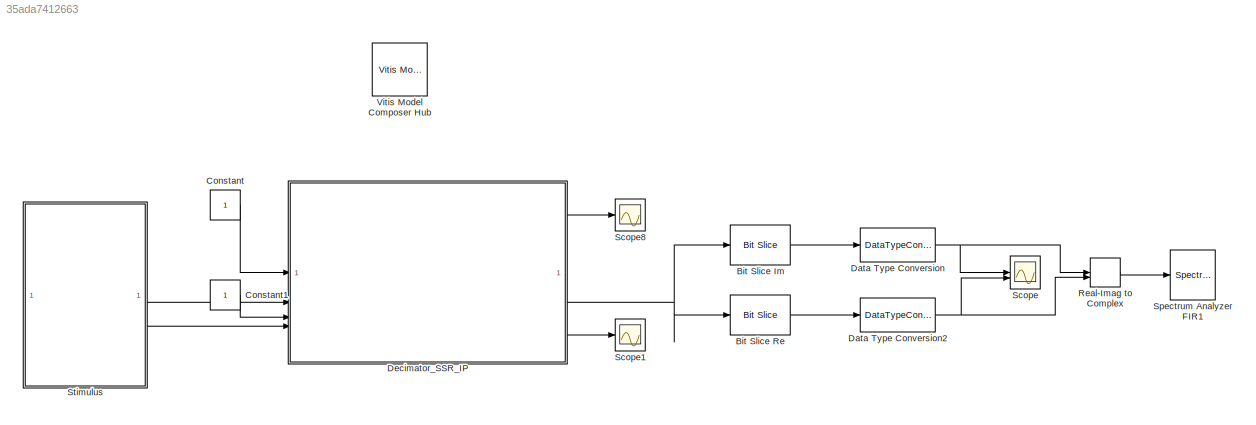
MODEL slx_35ada7412663
KIND model
CONFIG AbsTol = auto
CONFIG EnableMultiTasking = off
CONFIG FixedStep = auto
CONFIG MaxStep = auto
CONFIG MinStep = auto
CONFIG PreLoadFcn = startup
CONFIG RelTol = 1e-3
CONFIG SampleTimeConstraint = Unconstrained
CONFIG SolverName = VariableStepAuto
CONFIG StartTime = 0.0
CONFIG StopTime = 6000*(1/Fclk)
BLOCK [Reference] Bit Slice Im  REF=hdlsllib/Logic and Bit
Operations/Bit Slice
  SourceBlock = hdlsllib/Logic and Bit\nOperations/Bit Slice
  SourceType = Bit Slice
BLOCK [Reference] Bit Slice Re  REF=hdlsllib/Logic and Bit
Operations/Bit Slice
  SourceBlock = hdlsllib/Logic and Bit\nOperations/Bit Slice
  SourceType = Bit Slice
BLOCK [Constant] Constant
BLOCK [Constant] Constant1
BLOCK [DataTypeConversion] Data Type Conversion
  ConvertRealWorld = Stored Integer (SI)
  OutDataTypeStr = fixdt(1,16,15)
  RndMeth = Floor
  SaturateOnIntegerOverflow = off
BLOCK [DataTypeConversion] Data Type Conversion2
  ConvertRealWorld = Stored Integer (SI)
  OutDataTypeStr = fixdt(1,16,15)
  RndMeth = Floor
  SaturateOnIntegerOverflow = off
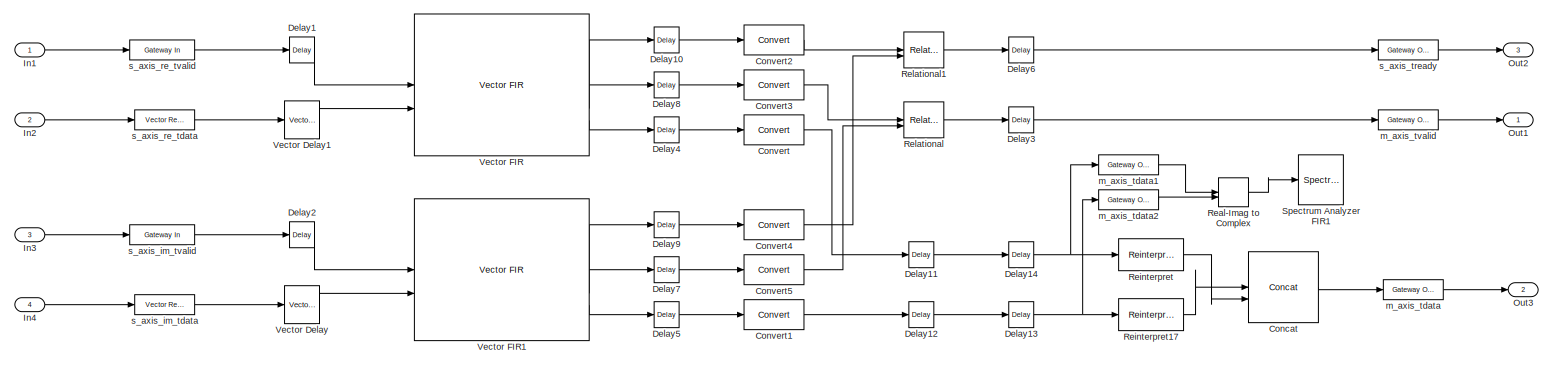
[diagram: Decimator_SSR_IP - part 1/1, most of the canvas]
BLOCK [SubSystem] Decimator_SSR_IP
BLOCK [Reference] Decimator_SSR_IP/Concat  REF=hdlBasic/Concat
  SourceBlock = hdlBasic/Concat
  SourceType = Bus Concatenator Block
BLOCK [Reference] Decimator_SSR_IP/Convert  REF=hdlBasic/Convert
  SourceBlock = hdlBasic/Convert
  SourceType = Type Converter Block
BLOCK [Reference] Decimator_SSR_IP/Convert1  REF=hdlBasic/Convert
  SourceBlock = hdlBasic/Convert
  SourceType = Type Converter Block
BLOCK [Reference] Decimator_SSR_IP/Convert2  REF=hdlBasic/Convert
  SourceBlock = hdlBasic/Convert
  SourceType = Type Converter Block
BLOCK [Reference] Decimator_SSR_IP/Convert3  REF=hdlBasic/Convert
  SourceBlock = hdlBasic/Convert
  SourceType = Type Converter Block
BLOCK [Reference] Decimator_SSR_IP/Convert4  REF=hdlBasic/Convert
  SourceBlock = hdlBasic/Convert
  SourceType = Type Converter Block
BLOCK [Reference] Decimator_SSR_IP/Convert5  REF=hdlBasic/Convert
  SourceBlock = hdlBasic/Convert
  SourceType = Type Converter Block
BLOCK [Reference] Decimator_SSR_IP/Delay1  REF=hdlBasic/Delay
  SourceBlock = hdlBasic/Delay
  SourceType = Delay Block
BLOCK [Reference] Decimator_SSR_IP/Delay10  REF=hdlBasic/Delay
  SourceBlock = hdlBasic/Delay
  SourceType = Delay Block
BLOCK [Reference] Decimator_SSR_IP/Delay11  REF=hdlBasic/Delay
  SourceBlock = hdlBasic/Delay
  SourceType = Delay Block
BLOCK [Reference] Decimator_SSR_IP/Delay12  REF=hdlBasic/Delay
  SourceBlock = hdlBasic/Delay
  SourceType = Delay Block
BLOCK [Reference] Decimator_SSR_IP/Delay13  REF=hdlBasic/Delay
  SourceBlock = hdlBasic/Delay
  SourceType = Delay Block
BLOCK [Reference] Decimator_SSR_IP/Delay14  REF=hdlBasic/Delay
  SourceBlock = hdlBasic/Delay
  SourceType = Delay Block
BLOCK [Reference] Decimator_SSR_IP/Delay2  REF=hdlBasic/Delay
  SourceBlock = hdlBasic/Delay
  SourceType = Delay Block
BLOCK [Reference] Decimator_SSR_IP/Delay3  REF=hdlBasic/Delay
  SourceBlock = hdlBasic/Delay
  SourceType = Delay Block
BLOCK [Reference] Decimator_SSR_IP/Delay4  REF=hdlBasic/Delay
  SourceBlock = hdlBasic/Delay
  SourceType = Delay Block
BLOCK [Reference] Decimator_SSR_IP/Delay5  REF=hdlBasic/Delay
  SourceBlock = hdlBasic/Delay
  SourceType = Delay Block
BLOCK [Reference] Decimator_SSR_IP/Delay6  REF=hdlBasic/Delay
  SourceBlock = hdlBasic/Delay
  SourceType = Delay Block
BLOCK [Reference] Decimator_SSR_IP/Delay7  REF=hdlBasic/Delay
  SourceBlock = hdlBasic/Delay
  SourceType = Delay Block
BLOCK [Reference] Decimator_SSR_IP/Delay8  REF=hdlBasic/Delay
  SourceBlock = hdlBasic/Delay
  SourceType = Delay Block
BLOCK [Reference] Decimator_SSR_IP/Delay9  REF=hdlBasic/Delay
  SourceBlock = hdlBasic/Delay
  SourceType = Delay Block
BLOCK [Inport] Decimator_SSR_IP/In1
BLOCK [Inport] Decimator_SSR_IP/In2
  Port = 2
BLOCK [Inport] Decimator_SSR_IP/In3
  Port = 3
BLOCK [Inport] Decimator_SSR_IP/In4
  Port = 4
BLOCK [Outport] Decimator_SSR_IP/Out1
BLOCK [Outport] Decimator_SSR_IP/Out2
  Port = 3
BLOCK [Outport] Decimator_SSR_IP/Out3
  Port = 2
BLOCK [RealImagToComplex] Decimator_SSR_IP/Real-Imag to Complex
BLOCK [Reference] Decimator_SSR_IP/Reinterpret  REF=hdlBasic/Reinterpret
  SourceBlock = hdlBasic/Reinterpret
  SourceType = Type Reinterpreter Block
BLOCK [Reference] Decimator_SSR_IP/Reinterpret17  REF=hdlBasic/Reinterpret
  SourceBlock = hdlBasic/Reinterpret
  SourceType = Type Reinterpreter Block
BLOCK [Reference] Decimator_SSR_IP/Relational  REF=hdlBasic/Relational
  SourceBlock = hdlBasic/Relational
  SourceType = Arithmetic Relational Operator Block
BLOCK [Reference] Decimator_SSR_IP/Relational1  REF=hdlBasic/Relational
  SourceBlock = hdlBasic/Relational
  SourceType = Arithmetic Relational Operator Block
BLOCK [SpectrumAnalyzer] Decimator_SSR_IP/Spectrum Analyzer FIR1
  GraphicalSettings = {"GraphicalSettings":{"Style":{"BackgroundColor":[0.12941176470588237,0.12941176470588237,0.12941176470588237],"AxesColor":[0.07058823529411765,0.07058823529411765,0.07058823529411765],"LabelsColor":[0.8509803921568627,0.8509803921568627,0.8509803921568627],"PreserveColors":false,"Visible":[true],"LineStyle":["-"],"LineColor":[[1,1,0.06666666666666667]],"LineWidth":[1.5],"Marker":["none"],"FontSiz...<+928ch>  <repeated x3 — deduplicated; at blocks: Spectrum Analyzer FIR1, Spectrum Analyzer1>
  ScopeFrameLocation = window
  Span = 64000000
  StartFrequency = -32000000
  StopFrequency = 32000000
  WasSavedAsWebScope = on
  WindowPosition = [2454.000000,-126.000000,800.000000,500.000000,]
  YLimits = [-99.54216651,-15.62203561]
BLOCK [Reference] Decimator_SSR_IP/Vector Delay  REF=hdlSSR/Vector Delay
  SourceBlock = hdlSSR/Vector Delay
  SourceType = Xilinx Vector Delay Block
BLOCK [Reference] Decimator_SSR_IP/Vector Delay1  REF=hdlSSR/Vector Delay
  SourceBlock = hdlSSR/Vector Delay
  SourceType = Xilinx Vector Delay Block
BLOCK [Reference] Decimator_SSR_IP/Vector FIR  REF=hdlSSR/Vector FIR
  SourceBlock = hdlSSR/Vector FIR
  SourceType = Xilinx Vector FIR Compiler 7.2 Block
BLOCK [Reference] Decimator_SSR_IP/Vector FIR1  REF=hdlSSR/Vector FIR
  SourceBlock = hdlSSR/Vector FIR
  SourceType = Xilinx Vector FIR Compiler 7.2 Block
BLOCK [Reference] Decimator_SSR_IP/m_axis_tdata  REF=hdlBasic/Gateway Out
  SourceBlock = hdlBasic/Gateway Out
  SourceType = Gateway Out Block
BLOCK [Reference] Decimator_SSR_IP/m_axis_tdata1  REF=hdlBasic/Gateway Out
  SourceBlock = hdlBasic/Gateway Out
  SourceType = Gateway Out Block
BLOCK [Reference] Decimator_SSR_IP/m_axis_tdata2  REF=hdlBasic/Gateway Out
  SourceBlock = hdlBasic/Gateway Out
  SourceType = Gateway Out Block
BLOCK [Reference] Decimator_SSR_IP/m_axis_tvalid  REF=hdlBasic/Gateway Out
  SourceBlock = hdlBasic/Gateway Out
  SourceType = Gateway Out Block
BLOCK [Reference] Decimator_SSR_IP/s_axis_im_tdata  REF=hdlSSR/Vector Real Gateway In
  SourceBlock = hdlSSR/Vector Real Gateway In
  SourceType = Xilinx Vector Gateway In Block
BLOCK [Reference] Decimator_SSR_IP/s_axis_im_tvalid  REF=hdlBasic/Gateway In
  SourceBlock = hdlBasic/Gateway In
  SourceType = Gateway In Block
BLOCK [Reference] Decimator_SSR_IP/s_axis_re_tdata  REF=hdlSSR/Vector Real Gateway In
  SourceBlock = hdlSSR/Vector Real Gateway In
  SourceType = Xilinx Vector Gateway In Block
BLOCK [Reference] Decimator_SSR_IP/s_axis_re_tvalid  REF=hdlBasic/Gateway In
  SourceBlock = hdlBasic/Gateway In
  SourceType = Gateway In Block
BLOCK [Reference] Decimator_SSR_IP/s_axis_tready  REF=hdlBasic/Gateway Out
  NameLocation = top
  SourceBlock = hdlBasic/Gateway Out
  SourceType = Gateway Out Block
BLOCK [RealImagToComplex] Real-Imag to Complex
BLOCK [Scope] Scope
  Floating = off
  NumInputPorts = 2
  ScopeSpecificationString = Simulink.scopes.TimeScopeBlockCfg('CurrentConfiguration', extmgr.ConfigurationSet(extmgr.Configuration('Core','General UI',true),extmgr.Configuration('Core','Source UI',true),extmgr.Configuration('Sources','WiredSimulink',true,'DataLoggingVariableName','ScopeData3'),extmgr.Configuration('Visuals','Time Domain',true,'SerializedDisplays',{struct('MinYLimReal','-0.12363','MaxYLimReal','0.12357','YLab...<+2052ch>
BLOCK [Scope] Scope1
  Floating = off
  NumInputPorts = 1
  ScopeSpecificationString = Simulink.scopes.TimeScopeBlockCfg('CurrentConfiguration', extmgr.ConfigurationSet(extmgr.Configuration('Core','General UI',true),extmgr.Configuration('Core','Source UI',true),extmgr.Configuration('Sources','WiredSimulink',true,'DataLoggingVariableName','ScopeData2'),extmgr.Configuration('Visuals','Time Domain',true,'SerializedDisplays',{struct('MinYLimReal','-1.125','MaxYLimReal','1.125','YLabelRe...<+2213ch>
BLOCK [Scope] Scope8
  Floating = off
  NumInputPorts = 1
  ScopeSpecificationString = Simulink.scopes.TimeScopeBlockCfg('CurrentConfiguration', extmgr.ConfigurationSet(extmgr.Configuration('Core','General UI',true),extmgr.Configuration('Core','Source UI',true),extmgr.Configuration('Sources','WiredSimulink',true,'DataLoggingVariableName','ScopeData1'),extmgr.Configuration('Visuals','Time Domain',true,'SerializedDisplays',{struct('MinYLimReal','-0.125','MaxYLimReal','1.125','YLabelRe...<+2231ch>
BLOCK [SpectrumAnalyzer] Spectrum Analyzer FIR1
  ScopeFrameLocation = window
  Span = 64000000
  StartFrequency = -32000000
  StopFrequency = 32000000
  WasSavedAsWebScope = on
  WindowPosition = [2590.000000,-85.000000,800.000000,500.000000,]
  YLimits = [-121.50346961,-16.52597239]
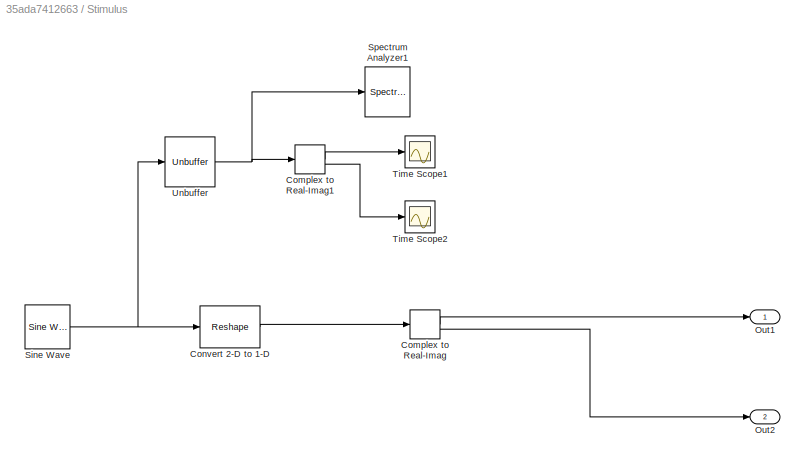
BLOCK [SubSystem] Stimulus
BLOCK [ComplexToRealImag] Stimulus/Complex to Real-Imag
BLOCK [ComplexToRealImag] Stimulus/Complex to Real-Imag1
BLOCK [Reshape] Stimulus/Convert 2-D to 1-D
BLOCK [Outport] Stimulus/Out1
BLOCK [Outport] Stimulus/Out2
  Port = 2
BLOCK [Reference] Stimulus/Sine Wave  REF=dspsrcs4/Sine Wave
  LibrarySourceBlock = dsphdlsupportsrcs/Sine Wave
  SourceBlock = dspsrcs4/Sine Wave
  SourceType = Sine Wave
BLOCK [SpectrumAnalyzer] Stimulus/Spectrum Analyzer1
  ScopeFrameLocation = window
  SelectedToolstripTab = spectrumAnalyzerToolstrip.measurementsTab
  Span = 512000000
  StartFrequency = -256000000
  StopFrequency = 256000000
  Visible = on
  WasSavedAsWebScope = on
  WindowPosition = [2063.000000,-103.000000,799.000000,500.000000,]
  YLimits = [-76.70327565,40.8002869]
BLOCK [Scope] Stimulus/Time Scope1
  DefaultConfigurationName = spbscopes.TimeScopeBlockCfg
  Floating = off
  NumInputPorts = 1
  ScopeSpecificationString = spbscopes.TimeScopeBlockCfg('CurrentConfiguration', extmgr.ConfigurationSet(extmgr.Configuration('Core','General UI',true,'FigureColor',[0.156862745098039 0.156862745098039 0.156862745098039]),extmgr.Configuration('Core','Source UI',true),extmgr.Configuration('Sources','WiredSimulink',true,'DataLoggingVariableName','ScopeData1'),extmgr.Configuration('Visuals','Time Domain',true,'DisplayPropertyDef...<+1566ch>
  UserDataPersistent = on
BLOCK [Scope] Stimulus/Time Scope2
  DefaultConfigurationName = spbscopes.TimeScopeBlockCfg
  Floating = off
  NumInputPorts = 1
  ScopeSpecificationString = spbscopes.TimeScopeBlockCfg('CurrentConfiguration', extmgr.ConfigurationSet(extmgr.Configuration('Core','General UI',true,'FigureColor',[0.156862745098039 0.156862745098039 0.156862745098039]),extmgr.Configuration('Core','Source UI',true),extmgr.Configuration('Sources','WiredSimulink',true,'DataLoggingVariableName','ScopeData3'),extmgr.Configuration('Visuals','Time Domain',true,'DisplayPropertyDef...<+1566ch>
  UserDataPersistent = on
BLOCK [Unbuffer] Stimulus/Unbuffer
BLOCK [Reference] Vitis Model Composer Hub  REF=vmcUtilities/Vitis Model Composer Hub
  SourceBlock = vmcUtilities/Vitis Model Composer Hub
  SourceType = VMC Hub
  Tag = genX
  UserDataPersistent = on
LINE Bit Slice Im:1 -> Data Type Conversion:1
LINE Bit Slice Re:1 -> Data Type Conversion2:1
LINE Constant1:1 -> Decimator_SSR_IP:3
LINE Constant:1 -> Decimator_SSR_IP:1
NET Data Type Conversion2:1 -> Real-Imag to Complex:2, Scope:2
NET Data Type Conversion:1 -> Real-Imag to Complex:1, Scope:1
LINE Decimator_SSR_IP/Concat:1 -> Decimator_SSR_IP/m_axis_tdata:1
LINE Decimator_SSR_IP/Convert1:1 -> Decimator_SSR_IP/Delay12:1
LINE Decimator_SSR_IP/Convert2:1 -> Decimator_SSR_IP/Relational1:1
LINE Decimator_SSR_IP/Convert3:1 -> Decimator_SSR_IP/Relational:1
LINE Decimator_SSR_IP/Convert4:1 -> Decimator_SSR_IP/Relational1:2
LINE Decimator_SSR_IP/Convert5:1 -> Decimator_SSR_IP/Relational:2
LINE Decimator_SSR_IP/Convert:1 -> Decimator_SSR_IP/Delay11:1
LINE Decimator_SSR_IP/Delay10:1 -> Decimator_SSR_IP/Convert2:1
LINE Decimator_SSR_IP/Delay11:1 -> Decimator_SSR_IP/Delay14:1
LINE Decimator_SSR_IP/Delay12:1 -> Decimator_SSR_IP/Delay13:1
NET Decimator_SSR_IP/Delay13:1 -> Decimator_SSR_IP/Reinterpret17:1, Decimator_SSR_IP/m_axis_tdata2:1
NET Decimator_SSR_IP/Delay14:1 -> Decimator_SSR_IP/Reinterpret:1, Decimator_SSR_IP/m_axis_tdata1:1
LINE Decimator_SSR_IP/Delay1:1 -> Decimator_SSR_IP/Vector FIR:1
LINE Decimator_SSR_IP/Delay2:1 -> Decimator_SSR_IP/Vector FIR1:1
LINE Decimator_SSR_IP/Delay3:1 -> Decimator_SSR_IP/m_axis_tvalid:1
LINE Decimator_SSR_IP/Delay4:1 -> Decimator_SSR_IP/Convert:1
LINE Decimator_SSR_IP/Delay5:1 -> Decimator_SSR_IP/Convert1:1
LINE Decimator_SSR_IP/Delay6:1 -> Decimator_SSR_IP/s_axis_tready:1
LINE Decimator_SSR_IP/Delay7:1 -> Decimator_SSR_IP/Convert5:1
LINE Decimator_SSR_IP/Delay8:1 -> Decimator_SSR_IP/Convert3:1
LINE Decimator_SSR_IP/Delay9:1 -> Decimator_SSR_IP/Convert4:1
LINE Decimator_SSR_IP/In1:1 -> Decimator_SSR_IP/s_axis_re_tvalid:1
LINE Decimator_SSR_IP/In2:1 -> Decimator_SSR_IP/s_axis_re_tdata:1
LINE Decimator_SSR_IP/In3:1 -> Decimator_SSR_IP/s_axis_im_tvalid:1
LINE Decimator_SSR_IP/In4:1 -> Decimator_SSR_IP/s_axis_im_tdata:1
LINE Decimator_SSR_IP/Real-Imag to Complex:1 -> Decimator_SSR_IP/Spectrum Analyzer FIR1:1
LINE Decimator_SSR_IP/Reinterpret17:1 -> Decimator_SSR_IP/Concat:1
LINE Decimator_SSR_IP/Reinterpret:1 -> Decimator_SSR_IP/Concat:2
LINE Decimator_SSR_IP/Relational1:1 -> Decimator_SSR_IP/Delay6:1
LINE Decimator_SSR_IP/Relational:1 -> Decimator_SSR_IP/Delay3:1
LINE Decimator_SSR_IP/Vector Delay1:1 -> Decimator_SSR_IP/Vector FIR:2
LINE Decimator_SSR_IP/Vector Delay:1 -> Decimator_SSR_IP/Vector FIR1:2
LINE Decimator_SSR_IP/Vector FIR1:1 -> Decimator_SSR_IP/Delay9:1
LINE Decimator_SSR_IP/Vector FIR1:2 -> Decimator_SSR_IP/Delay7:1
LINE Decimator_SSR_IP/Vector FIR1:3 -> Decimator_SSR_IP/Delay5:1
LINE Decimator_SSR_IP/Vector FIR:1 -> Decimator_SSR_IP/Delay10:1
LINE Decimator_SSR_IP/Vector FIR:2 -> Decimator_SSR_IP/Delay8:1
LINE Decimator_SSR_IP/Vector FIR:3 -> Decimator_SSR_IP/Delay4:1
LINE Decimator_SSR_IP/m_axis_tdata1:1 -> Decimator_SSR_IP/Real-Imag to Complex:1
LINE Decimator_SSR_IP/m_axis_tdata2:1 -> Decimator_SSR_IP/Real-Imag to Complex:2
LINE Decimator_SSR_IP/m_axis_tdata:1 -> Decimator_SSR_IP/Out3:1
LINE Decimator_SSR_IP/m_axis_tvalid:1 -> Decimator_SSR_IP/Out1:1
LINE Decimator_SSR_IP/s_axis_im_tdata:1 -> Decimator_SSR_IP/Vector Delay:1
LINE Decimator_SSR_IP/s_axis_im_tvalid:1 -> Decimator_SSR_IP/Delay2:1
LINE Decimator_SSR_IP/s_axis_re_tdata:1 -> Decimator_SSR_IP/Vector Delay1:1
LINE Decimator_SSR_IP/s_axis_re_tvalid:1 -> Decimator_SSR_IP/Delay1:1
LINE Decimator_SSR_IP/s_axis_tready:1 -> Decimator_SSR_IP/Out2:1
LINE Decimator_SSR_IP:1 -> Scope8:1
NET Decimator_SSR_IP:2 -> Bit Slice Im:1, Bit Slice Re:1
LINE Decimator_SSR_IP:3 -> Scope1:1
LINE Real-Imag to Complex:1 -> Spectrum Analyzer FIR1:1
LINE Stimulus/Complex to Real-Imag1:1 -> Stimulus/Time Scope1:1
LINE Stimulus/Complex to Real-Imag1:2 -> Stimulus/Time Scope2:1
LINE Stimulus/Complex to Real-Imag:1 -> Stimulus/Out1:1
LINE Stimulus/Complex to Real-Imag:2 -> Stimulus/Out2:1
LINE Stimulus/Convert 2-D to 1-D:1 -> Stimulus/Complex to Real-Imag:1
NET Stimulus/Sine Wave:1 -> Stimulus/Convert 2-D to 1-D:1, Stimulus/Unbuffer:1
NET Stimulus/Unbuffer:1 -> Stimulus/Complex to Real-Imag1:1, Stimulus/Spectrum Analyzer1:1
LINE Stimulus:1 -> Decimator_SSR_IP:2
LINE Stimulus:2 -> Decimator_SSR_IP:4
note: NET lines group one-source signal fan-out (src -> all destinations, sorted); 1:1 wires keep LINE
